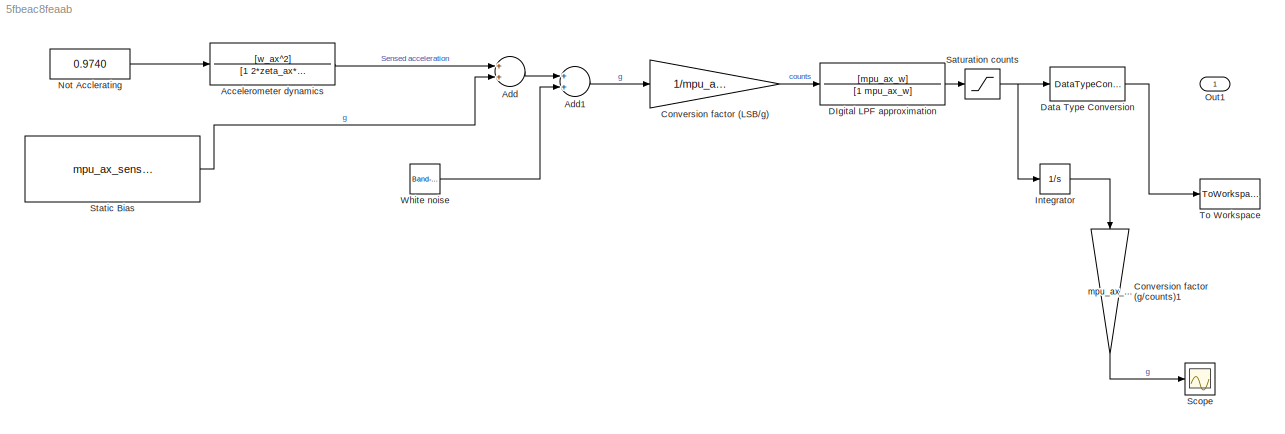
MODEL slx_5fbeac8feaab
KIND model
CONFIG AbsTol = auto
CONFIG FixedStep = 1/mpu_sampling_frequency
CONFIG MaxStep = auto
CONFIG MinStep = auto
CONFIG RelTol = 1e-3
CONFIG SampleTimeConstraint = Unconstrained
CONFIG Solver = ode5
CONFIG SolverMode = Auto
CONFIG SolverName = ode5
CONFIG StartTime = 0.0
CONFIG StopTime = 180
BLOCK [TransferFcn] Accelerometer dynamics
  Commented = through
  Denominator = [1 2*zeta_ax*wn_ax wn_ax^2]
  Numerator = [w_ax^2]
BLOCK [Sum] Add
  InputSameDT = off
  OutDataTypeStr = Inherit: Inherit via internal rule
  Ports = [2, 1]
  SaturateOnIntegerOverflow = off
BLOCK [Sum] Add1
  InputSameDT = off
  OutDataTypeStr = Inherit: Inherit via internal rule
  Ports = [2, 1]
  SaturateOnIntegerOverflow = off
BLOCK [Gain] Conversion factor (LSB//g)
  Gain = 1/mpu_ax_sensitivity
  OutDataTypeStr = Inherit: Inherit via internal rule
  ParamDataTypeStr = Inherit: Inherit via internal rule
  SaturateOnIntegerOverflow = off
BLOCK [Gain] Conversion factor (g//counts)1
  Gain = mpu_ax_sensitivity
  OutDataTypeStr = Inherit: Inherit via internal rule
  ParamDataTypeStr = Inherit: Inherit via internal rule
  SaturateOnIntegerOverflow = off
BLOCK [TransferFcn] DIgital LPF approximation
  Denominator = [1 mpu_ax_w]
  Numerator = [mpu_ax_w]
BLOCK [DataTypeConversion] Data Type Conversion
  Commented = through
  OutDataTypeStr = int16
  RndMeth = Floor
  SaturateOnIntegerOverflow = off
BLOCK [Integrator] Integrator
  Ports = [1, 1]
BLOCK [Constant] Not Acclerating 
  Value = 0.9740
BLOCK [Outport] Out1
  IconDisplay = Port number
BLOCK [Saturate] Saturation counts 
  InputPortMap = u0
  LowerLimit = -2^15
  Ports = [1, 1]
  UpperLimit = 2^15
BLOCK [Scope] Scope
  Ports = [1]
  ScopeSpecificationString = Simulink.scopes.TimeScopeBlockCfg('CurrentConfiguration', extmgr.ConfigurationSet(extmgr.Configuration('Core','General UI',true),extmgr.Configuration('Core','Source UI',true),extmgr.Configuration('Sources','WiredSimulink',true),extmgr.Configuration('Visuals','Time Domain',true,'SerializedDisplays',{struct('MinYLimReal','-20.56211','MaxYLimReal','185.05899','YLabelReal','','MinYLimMag','0.00000','M...<+1364ch>
BLOCK [Constant] Static Bias
  Value = mpu_ax_sensitivity*mpu_ax_bias
BLOCK [ToWorkspace] To Workspace
  FixptAsFi = on
  MaxDataPoints = inf
  Ports = [1]
  SampleTime = -1
  Save2DSignal = 3-D array (concatenate along third dimension)
  VariableName = mpuZAxSim
BLOCK [Reference] White noise  REF=simulink/Sources/Band-Limited
White Noise
  Ports = [0, 1]
  SourceBlock = simulink/Sources/Band-Limited\nWhite Noise
  SourceType = Band-Limited White Noise.
LINE Accelerometer dynamics:1 -> Add:1
LINE Add1:1 -> Conversion factor (LSB//g):1
LINE Add:1 -> Add1:1
LINE Conversion factor (LSB//g):1 -> DIgital LPF approximation:1
LINE Conversion factor (g//counts)1:1 -> Scope:1
LINE DIgital LPF approximation:1 -> Saturation counts :1
LINE Data Type Conversion:1 -> To Workspace:1
LINE Integrator:1 -> Conversion factor (g//counts)1:1
LINE Not Acclerating :1 -> Accelerometer dynamics:1
NET Saturation counts :1 -> Data Type Conversion:1, Integrator:1
LINE Static Bias:1 -> Add:2
LINE White noise:1 -> Add1:2
note: NET lines group one-source signal fan-out (src -> all destinations, sorted); 1:1 wires keep LINE
